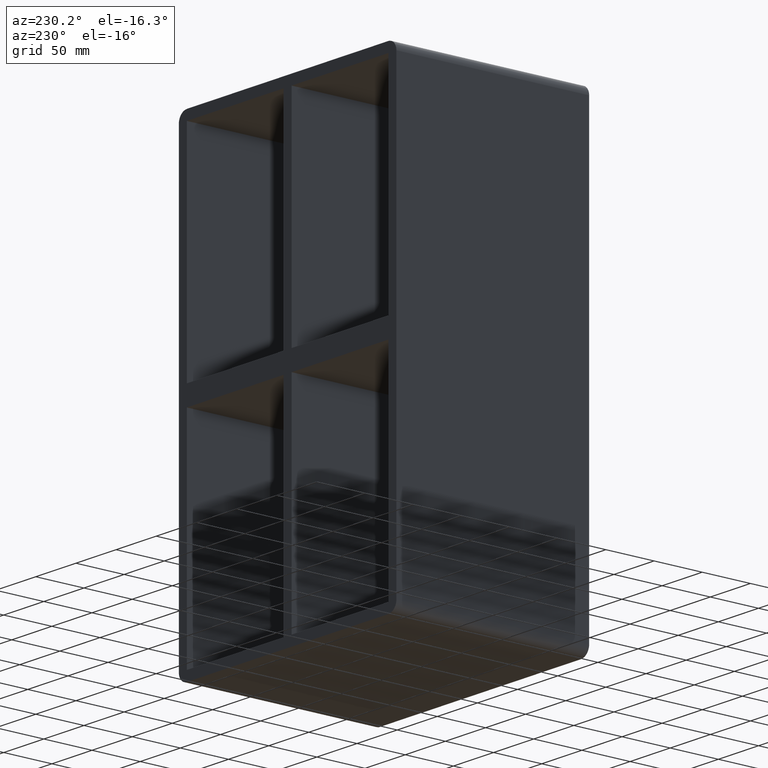
[diagram: clean part render]
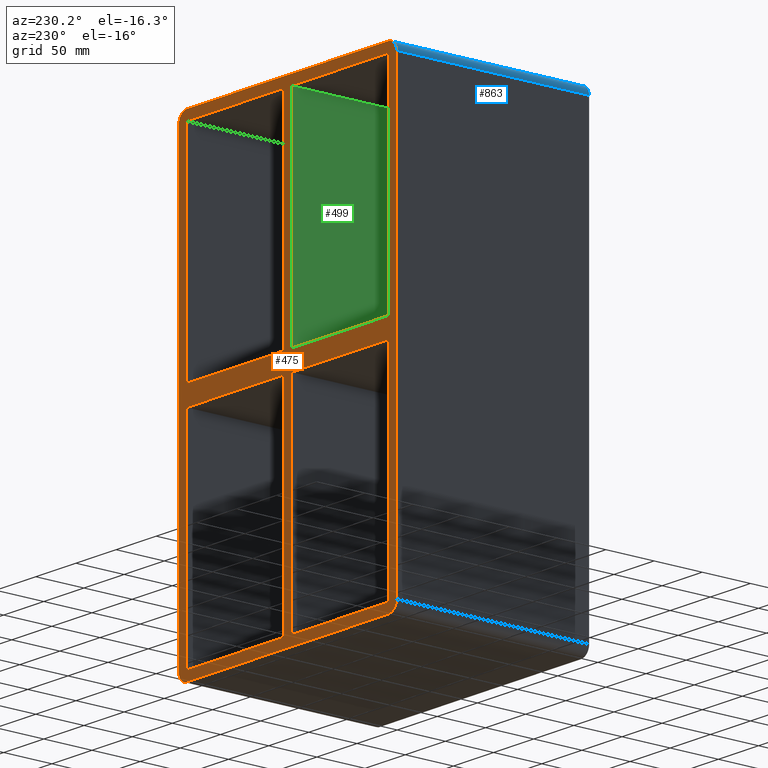
[diagram: same view with three faces highlighted in distinct colors, each labeled with its STEP entity id]
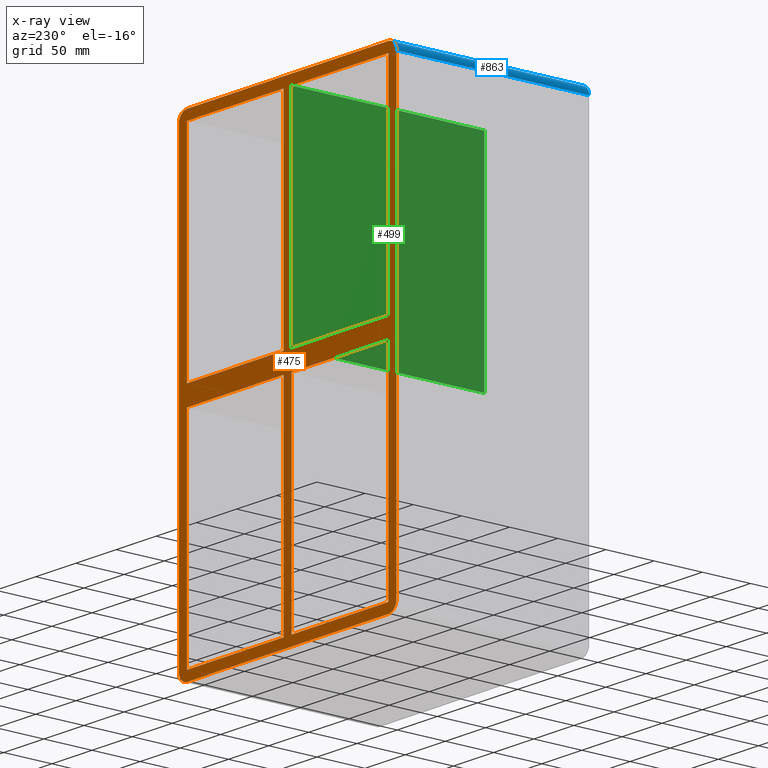
[diagram: x-ray of the same camera — body ghosted, the three highlighted faces saturated]
A machine part, auxiliary view with three faces highlighted in distinct colors.
The next image is the same camera in x-ray (body ghosted, the three faces saturated) — at least one of them is partly hidden behind the body in this view.
Their STEP definitions:

[orange] entity #475 — the highlighted planar face has unit normal (0, 1, 0).
#73=CARTESIAN_POINT('',(5.0,197.0,-10.000000000017939));
#74=VERTEX_POINT('',#73);
#83=CARTESIAN_POINT('',(125.49999999999274,197.0,-10.000000000017968));
#84=VERTEX_POINT('',#83);
#85=CARTESIAN_POINT('',(125.49999999999272,197.0,-10.000000000017968));
#86=DIRECTION('',(-1.0,0.0,0.0));
#87=VECTOR('',#86,120.49999999999272);
#88=LINE('',#85,#87);
#89=EDGE_CURVE('',#84,#74,#88,.T.);
#115=CARTESIAN_POINT('',(-5.000000000001243,197.0,-10.000000000017934));
#116=VERTEX_POINT('',#115);
#131=CARTESIAN_POINT('',(-125.49999999999967,197.0,-10.000000000017906));
#132=VERTEX_POINT('',#131);
#139=CARTESIAN_POINT('',(-5.000000000001251,197.0,-10.000000000017936));
#140=DIRECTION('',(-1.0,0.0,0.0));
#141=VECTOR('',#140,120.49999999999844);
#142=LINE('',#139,#141);
#143=EDGE_CURVE('',#116,#132,#142,.T.);
#155=CARTESIAN_POINT('',(5.0,197.0,10.0));
#156=VERTEX_POINT('',#155);
#171=CARTESIAN_POINT('',(125.49999999999991,197.0,10.0));
#172=VERTEX_POINT('',#171);
#179=CARTESIAN_POINT('',(4.999999999999986,197.0,10.0));
#180=DIRECTION('',(1.0,0.0,0.0));
#181=VECTOR('',#180,120.49999999999994);
#182=LINE('',#179,#181);
#183=EDGE_CURVE('',#156,#172,#182,.T.);
#193=CARTESIAN_POINT('',(-5.000000000001261,197.0,10.0));
#194=VERTEX_POINT('',#193);
#203=CARTESIAN_POINT('',(-125.49999999999967,197.0,10.0));
#204=VERTEX_POINT('',#203);
#205=CARTESIAN_POINT('',(-125.49999999999967,197.0,10.0));
#206=DIRECTION('',(1.0,0.0,0.0));
#207=VECTOR('',#206,120.49999999999841);
#208=LINE('',#205,#207);
#209=EDGE_CURVE('',#204,#194,#208,.T.);
#234=CARTESIAN_POINT('',(-125.5,197.0,228.00000000000006));
#235=VERTEX_POINT('',#234);
#236=CARTESIAN_POINT('',(-125.50000000000003,197.0,227.99999999999997));
#237=DIRECTION('',(0.0,0.0,-1.0));
#238=VECTOR('',#237,217.99999999999997);
#239=LINE('',#236,#238);
#240=EDGE_CURVE('',#235,#204,#239,.T.);
#265=CARTESIAN_POINT('',(125.5,197.0,-228.00000000000006));
#266=VERTEX_POINT('',#265);
#267=CARTESIAN_POINT('',(125.5,197.0,-228.0));
#268=DIRECTION('',(0.0,0.0,1.0));
#269=VECTOR('',#268,217.99999999998204);
#270=LINE('',#267,#269);
#271=EDGE_CURVE('',#266,#84,#270,.T.);
#304=CARTESIAN_POINT('',(125.5,197.0,228.00000000000006));
#305=VERTEX_POINT('',#304);
#312=CARTESIAN_POINT('',(125.5,197.0,10.0));
#313=DIRECTION('',(0.0,0.0,1.0));
#314=VECTOR('',#313,218.00000000000006);
#315=LINE('',#312,#314);
#316=EDGE_CURVE('',#172,#305,#315,.T.);
#321=CARTESIAN_POINT('',(-1.463651E-014,197.0,0.0));
#322=DIRECTION('',(0.0,1.0,0.0));
#323=DIRECTION('',(0.0,0.0,1.0));
#324=AXIS2_PLACEMENT_3D('',#321,#322,#323);
#325=PLANE('',#324);
#326=CARTESIAN_POINT('',(-135.50000000000003,197.0,-228.0));
#327=VERTEX_POINT('',#326);
#328=CARTESIAN_POINT('',(-125.50000000000003,197.0,-238.0));
#329=VERTEX_POINT('',#328);
#330=CARTESIAN_POINT('',(-125.50000000000003,197.0,-228.0));
#331=DIRECTION('',(0.0,-1.0,0.0));
#332=DIRECTION('',(-0.707106781186547,0.0,-0.707106781186547));
#333=AXIS2_PLACEMENT_3D('',#330,#331,#332);
#334=CIRCLE('',#333,9.999999999999998);
#335=EDGE_CURVE('',#327,#329,#334,.T.);
#336=ORIENTED_EDGE('',*,*,#335,.F.);
#337=CARTESIAN_POINT('',(-135.50000000000003,197.0,228.0));
#338=VERTEX_POINT('',#337);
#339=CARTESIAN_POINT('',(-135.50000000000003,197.0,-228.0));
#340=DIRECTION('',(0.0,0.0,1.0));
#341=VECTOR('',#340,456.0);
#342=LINE('',#339,#341);
#343=EDGE_CURVE('',#327,#338,#342,.T.);
#344=ORIENTED_EDGE('',*,*,#343,.T.);
#345=CARTESIAN_POINT('',(-125.50000000000003,197.0,238.0));
#346=VERTEX_POINT('',#345);
#347=CARTESIAN_POINT('',(-125.50000000000003,197.0,228.0));
#348=DIRECTION('',(0.0,-1.0,0.0));
#349=DIRECTION('',(-0.707106781186547,0.0,0.707106781186547));
#350=AXIS2_PLACEMENT_3D('',#347,#348,#349);
#351=CIRCLE('',#350,9.999999999999998);
#352=EDGE_CURVE('',#346,#338,#351,.T.);
#353=ORIENTED_EDGE('',*,*,#352,.F.);
#354=CARTESIAN_POINT('',(125.49999999999999,197.0,238.0));
#355=VERTEX_POINT('',#354);
#356=CARTESIAN_POINT('',(-125.50000000000003,197.0,238.0));
#357=DIRECTION('',(1.0,0.0,0.0));
#358=VECTOR('',#357,251.0);
#359=LINE('',#356,#358);
#360=EDGE_CURVE('',#346,#355,#359,.T.);
#361=ORIENTED_EDGE('',*,*,#360,.T.);
#362=CARTESIAN_POINT('',(135.5,197.0,228.0));
#363=VERTEX_POINT('',#362);
#364=CARTESIAN_POINT('',(125.49999999999999,197.0,228.0));
#365=DIRECTION('',(0.0,-1.0,0.0));
#366=DIRECTION('',(0.707106781186547,0.0,0.707106781186547));
#367=AXIS2_PLACEMENT_3D('',#364,#365,#366);
#368=CIRCLE('',#367,9.999999999999998);
#369=EDGE_CURVE('',#363,#355,#368,.T.);
#370=ORIENTED_EDGE('',*,*,#369,.F.);
#371=CARTESIAN_POINT('',(135.5,197.0,-228.0));
#372=VERTEX_POINT('',#371);
#373=CARTESIAN_POINT('',(135.5,197.0,228.0));
#374=DIRECTION('',(0.0,0.0,-1.0));
#375=VECTOR('',#374,456.0);
#376=LINE('',#373,#375);
#377=EDGE_CURVE('',#363,#372,#376,.T.);
#378=ORIENTED_EDGE('',*,*,#377,.T.);
#379=CARTESIAN_POINT('',(125.49999999999999,197.0,-238.0));
#380=VERTEX_POINT('',#379);
#381=CARTESIAN_POINT('',(125.49999999999999,197.0,-228.0));
#382=DIRECTION('',(0.0,-1.0,0.0));
#383=DIRECTION('',(0.707106781186547,0.0,-0.707106781186547));
#384=AXIS2_PLACEMENT_3D('',#381,#382,#383);
#385=CIRCLE('',#384,9.999999999999998);
#386=EDGE_CURVE('',#380,#372,#385,.T.);
#387=ORIENTED_EDGE('',*,*,#386,.F.);
#388=CARTESIAN_POINT('',(125.5,197.0,-238.0));
#389=DIRECTION('',(-1.0,0.0,0.0));
#390=VECTOR('',#389,251.0);
#391=LINE('',#388,#390);
#392=EDGE_CURVE('',#380,#329,#391,.T.);
#393=ORIENTED_EDGE('',*,*,#392,.T.);
#394=EDGE_LOOP('',(#336,#344,#353,#361,#370,#378,#387,#393));
#395=FACE_OUTER_BOUND('',#394,.T.);
#396=CARTESIAN_POINT('',(-125.5,197.0,-228.00000000000006));
#397=VERTEX_POINT('',#396);
#398=CARTESIAN_POINT('',(-125.50000000000003,197.0,-10.000000000017906));
#399=DIRECTION('',(0.0,0.0,-1.0));
#400=VECTOR('',#399,217.99999999998215);
#401=LINE('',#398,#400);
#402=EDGE_CURVE('',#132,#397,#401,.T.);
#403=ORIENTED_EDGE('',*,*,#402,.T.);
#404=CARTESIAN_POINT('',(-5.000000000001217,197.0,-228.00000000000006));
#405=VERTEX_POINT('',#404);
#406=CARTESIAN_POINT('',(-125.5,197.0,-228.00000000000006));
#407=DIRECTION('',(1.0,0.0,0.0));
#408=VECTOR('',#407,120.49999999999878);
#409=LINE('',#406,#408);
#410=EDGE_CURVE('',#397,#405,#409,.T.);
#411=ORIENTED_EDGE('',*,*,#410,.T.);
#412=CARTESIAN_POINT('',(-5.000000000001217,197.0,-228.00000000000006));
#413=DIRECTION('',(0.0,0.0,1.0));
#414=VECTOR('',#413,217.99999999998209);
#415=LINE('',#412,#414);
#416=EDGE_CURVE('',#405,#116,#415,.T.);
#417=ORIENTED_EDGE('',*,*,#416,.T.);
#418=ORIENTED_EDGE('',*,*,#143,.T.);
#419=EDGE_LOOP('',(#403,#411,#417,#418));
#420=FACE_BOUND('',#419,.T.);
#421=ORIENTED_EDGE('',*,*,#316,.T.);
#422=CARTESIAN_POINT('',(5.0,197.0,228.00000000000006));
#423=VERTEX_POINT('',#422);
#424=CARTESIAN_POINT('',(125.5,197.0,228.0));
#425=DIRECTION('',(-1.0,0.0,0.0));
#426=VECTOR('',#425,120.5);
#427=LINE('',#424,#426);
#428=EDGE_CURVE('',#305,#423,#427,.T.);
#429=ORIENTED_EDGE('',*,*,#428,.T.);
#430=CARTESIAN_POINT('',(5.0,197.0,228.00000000000006));
#431=DIRECTION('',(0.0,0.0,-1.0));
#432=VECTOR('',#431,218.00000000000006);
#433=LINE('',#430,#432);
#434=EDGE_CURVE('',#423,#156,#433,.T.);
#435=ORIENTED_EDGE('',*,*,#434,.T.);
#436=ORIENTED_EDGE('',*,*,#183,.T.);
#437=EDGE_LOOP('',(#421,#429,#435,#436));
#438=FACE_BOUND('',#437,.T.);
#439=ORIENTED_EDGE('',*,*,#89,.T.);
#440=CARTESIAN_POINT('',(5.0,197.0,-227.99999999997084));
#441=VERTEX_POINT('',#440);
#442=CARTESIAN_POINT('',(5.0,197.0,-10.000000000017934));
#443=DIRECTION('',(0.0,0.0,-1.0));
#444=VECTOR('',#443,217.99999999995291);
#445=LINE('',#442,#444);
#446=EDGE_CURVE('',#74,#441,#445,.T.);
#447=ORIENTED_EDGE('',*,*,#446,.T.);
#448=CARTESIAN_POINT('',(5.0,197.0,-228.00000000000006));
#449=DIRECTION('',(1.0,0.0,0.0));
#450=VECTOR('',#449,120.5);
#451=LINE('',#448,#450);
#452=EDGE_CURVE('',#441,#266,#451,.T.);
#453=ORIENTED_EDGE('',*,*,#452,.T.);
#454=ORIENTED_EDGE('',*,*,#271,.T.);
#455=EDGE_LOOP('',(#439,#447,#453,#454));
#456=FACE_BOUND('',#455,.T.);
#457=ORIENTED_EDGE('',*,*,#209,.T.);
#458=CARTESIAN_POINT('',(-5.000000000001297,197.0,228.00000000000006));
#459=VERTEX_POINT('',#458);
#460=CARTESIAN_POINT('',(-5.000000000001259,197.0,10.0));
#461=DIRECTION('',(0.0,0.0,1.0));
#462=VECTOR('',#461,218.00000000000006);
#463=LINE('',#460,#462);
#464=EDGE_CURVE('',#194,#459,#463,.T.);
#465=ORIENTED_EDGE('',*,*,#464,.T.);
#466=CARTESIAN_POINT('',(-5.0000000000013,197.0,228.0));
#467=DIRECTION('',(-1.0,0.0,0.0));
#468=VECTOR('',#467,120.49999999999869);
#469=LINE('',#466,#468);
#470=EDGE_CURVE('',#459,#235,#469,.T.);
#471=ORIENTED_EDGE('',*,*,#470,.T.);
#472=ORIENTED_EDGE('',*,*,#240,.T.);
#473=EDGE_LOOP('',(#457,#465,#471,#472));
#474=FACE_BOUND('',#473,.T.);
#475=ADVANCED_FACE('',(#395,#420,#438,#456,#474),#325,.T.);

[blue] entity #863 — the highlighted cylindrical surface (edge-blend (fillet) strip) has radius 10 mm, axis along (0, 1, 0).
#337=CARTESIAN_POINT('',(-135.50000000000003,197.0,228.0));
#338=VERTEX_POINT('',#337);
#345=CARTESIAN_POINT('',(-125.50000000000003,197.0,238.0));
#346=VERTEX_POINT('',#345);
#347=CARTESIAN_POINT('',(-125.50000000000003,197.0,228.0));
#348=DIRECTION('',(0.0,-1.0,0.0));
#349=DIRECTION('',(-0.707106781186547,0.0,0.707106781186547));
#350=AXIS2_PLACEMENT_3D('',#347,#348,#349);
#351=CIRCLE('',#350,9.999999999999998);
#352=EDGE_CURVE('',#346,#338,#351,.T.);
#719=CARTESIAN_POINT('',(-125.50000000000003,-3.0,238.0));
#720=VERTEX_POINT('',#719);
#727=CARTESIAN_POINT('',(-135.50000000000003,-3.0,228.0));
#728=VERTEX_POINT('',#727);
#729=CARTESIAN_POINT('',(-125.50000000000003,-3.0,228.0));
#730=DIRECTION('',(0.0,1.0,0.0));
#731=DIRECTION('',(-0.707106781186547,0.0,0.707106781186547));
#732=AXIS2_PLACEMENT_3D('',#729,#730,#731);
#733=CIRCLE('',#732,9.999999999999998);
#734=EDGE_CURVE('',#728,#720,#733,.T.);
#837=CARTESIAN_POINT('',(-125.50000000000003,-3.0,238.0));
#838=DIRECTION('',(0.0,1.0,0.0));
#839=VECTOR('',#838,200.0);
#840=LINE('',#837,#839);
#841=EDGE_CURVE('',#720,#346,#840,.T.);
#847=CARTESIAN_POINT('',(-125.50000000000003,0.0,228.0));
#848=DIRECTION('',(0.0,1.0,0.0));
#849=DIRECTION('',(-0.707106781186547,0.0,0.707106781186547));
#850=AXIS2_PLACEMENT_3D('',#847,#848,#849);
#851=CYLINDRICAL_SURFACE('',#850,10.0);
#852=ORIENTED_EDGE('',*,*,#352,.T.);
#853=CARTESIAN_POINT('',(-135.50000000000003,197.0,228.0));
#854=DIRECTION('',(0.0,-1.0,0.0));
#855=VECTOR('',#854,200.0);
#856=LINE('',#853,#855);
#857=EDGE_CURVE('',#338,#728,#856,.T.);
#858=ORIENTED_EDGE('',*,*,#857,.T.);
#859=ORIENTED_EDGE('',*,*,#734,.T.);
#860=ORIENTED_EDGE('',*,*,#841,.T.);
#861=EDGE_LOOP('',(#852,#858,#859,#860));
#862=FACE_OUTER_BOUND('',#861,.T.);
#863=ADVANCED_FACE('',(#862),#851,.T.);

[green] entity #499 — the highlighted planar face has unit normal (-1, 0, 0).
#193=CARTESIAN_POINT('',(-5.000000000001261,197.0,10.0));
#194=VERTEX_POINT('',#193);
#195=CARTESIAN_POINT('',(-5.000000000001261,-3.0,10.0));
#196=VERTEX_POINT('',#195);
#197=CARTESIAN_POINT('',(-5.000000000001261,197.0,10.0));
#198=DIRECTION('',(0.0,-1.0,0.0));
#199=VECTOR('',#198,200.0);
#200=LINE('',#197,#199);
#201=EDGE_CURVE('',#194,#196,#200,.T.);
#458=CARTESIAN_POINT('',(-5.000000000001297,197.0,228.00000000000006));
#459=VERTEX_POINT('',#458);
#460=CARTESIAN_POINT('',(-5.000000000001259,197.0,10.0));
#461=DIRECTION('',(0.0,0.0,1.0));
#462=VECTOR('',#461,218.00000000000006);
#463=LINE('',#460,#462);
#464=EDGE_CURVE('',#194,#459,#463,.T.);
#476=CARTESIAN_POINT('',(-5.000000000001217,-3.0,-228.00000000000006));
#477=DIRECTION('',(-1.0,0.0,0.0));
#478=DIRECTION('',(0.0,0.0,1.0));
#479=AXIS2_PLACEMENT_3D('',#476,#477,#478);
#480=PLANE('',#479);
#481=ORIENTED_EDGE('',*,*,#201,.T.);
#482=CARTESIAN_POINT('',(-5.000000000001297,-3.0,228.00000000000006));
#483=VERTEX_POINT('',#482);
#484=CARTESIAN_POINT('',(-5.000000000001259,-3.0,10.0));
#485=DIRECTION('',(0.0,0.0,1.0));
#486=VECTOR('',#485,218.00000000000006);
#487=LINE('',#484,#486);
#488=EDGE_CURVE('',#196,#483,#487,.T.);
#489=ORIENTED_EDGE('',*,*,#488,.T.);
#490=CARTESIAN_POINT('',(-5.000000000001301,196.99999999999997,228.0));
#491=DIRECTION('',(0.0,-1.0,0.0));
#492=VECTOR('',#491,199.99999999999997);
#493=LINE('',#490,#492);
#494=EDGE_CURVE('',#459,#483,#493,.T.);
#495=ORIENTED_EDGE('',*,*,#494,.F.);
#496=ORIENTED_EDGE('',*,*,#464,.F.);
#497=EDGE_LOOP('',(#481,#489,#495,#496));
#498=FACE_OUTER_BOUND('',#497,.T.);
#499=ADVANCED_FACE('',(#498),#480,.T.);